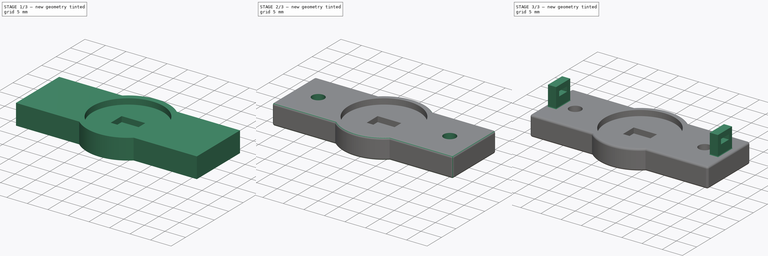
[diagram: build sequence overview — one tinted view per stage of 3, left to right]
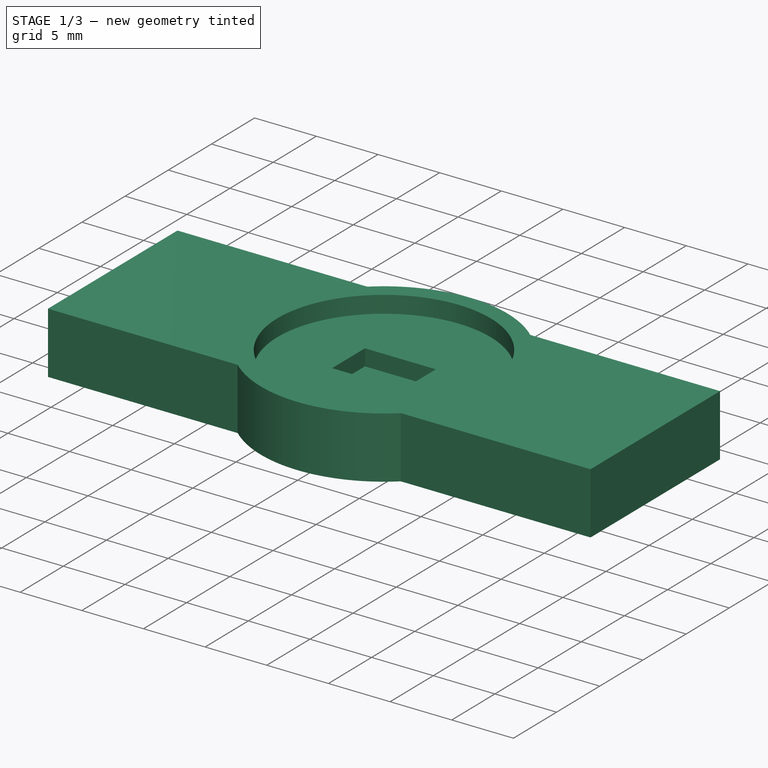
[diagram: stage 1 of 3 — iso view after this stage's code; geometry added in this stage tinted green]
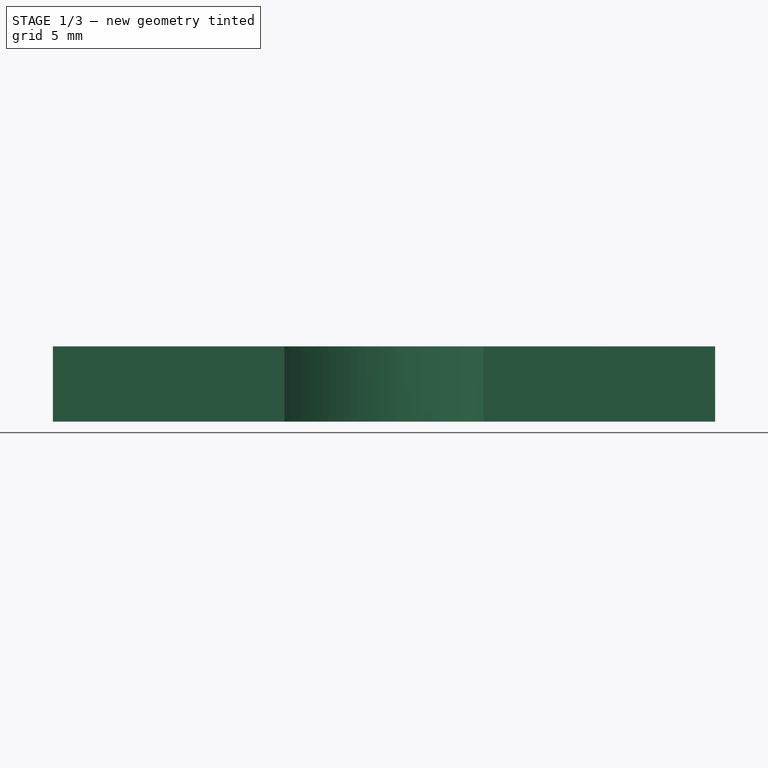
[diagram: stage 1 of 3 — front view after this stage's code; geometry added in this stage tinted green]
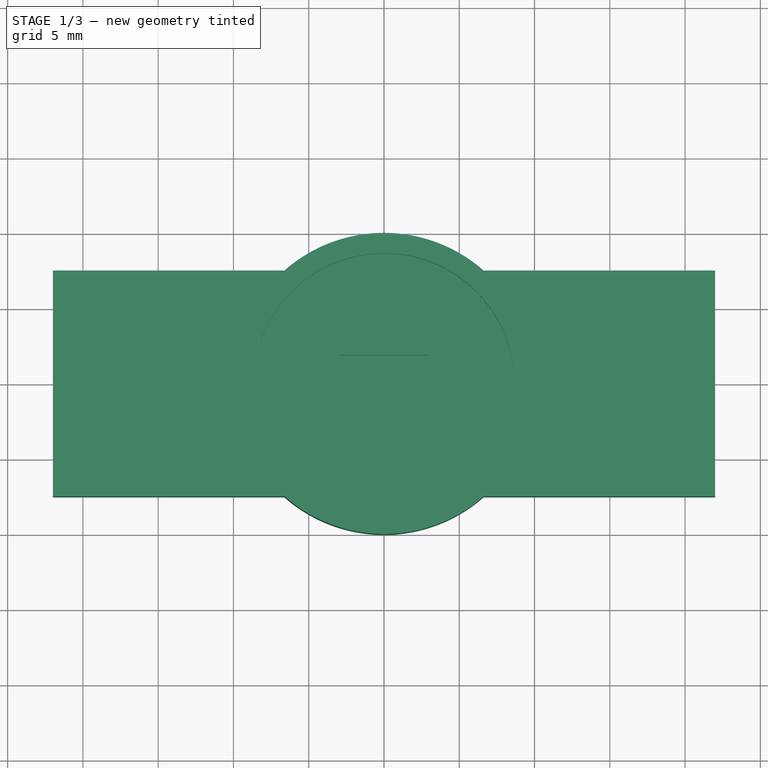
[diagram: stage 1 of 3 — top view after this stage's code; geometry added in this stage tinted green]
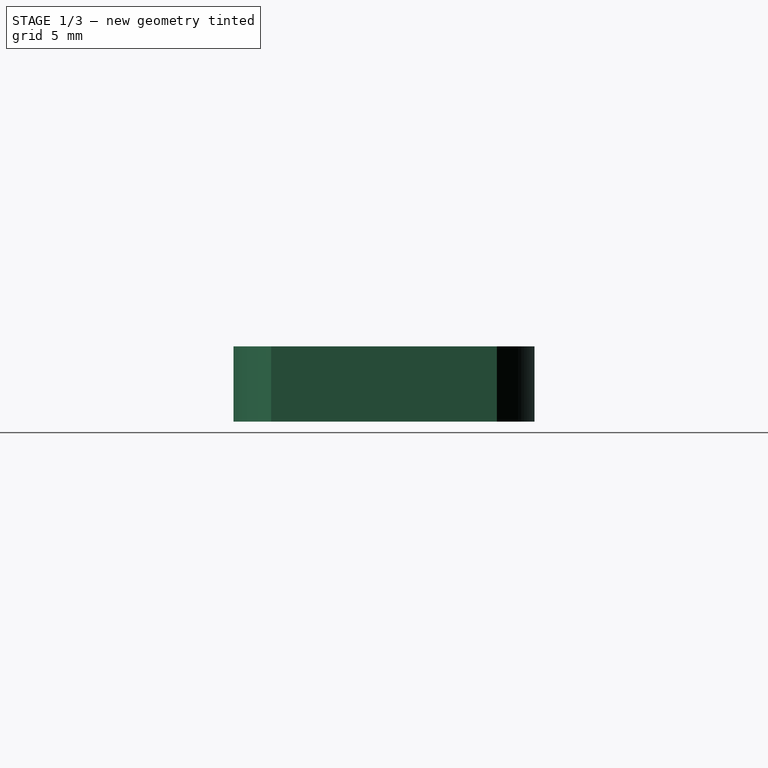
[diagram: stage 1 of 3 — right view after this stage's code; geometry added in this stage tinted green]
FCSTD DOCUMENT  (FreeCAD 0.16R6706 (Git))
Label: cam_mount
License: All rights reserved
LicenseURL: http://en.wikipedia.org/wiki/All_rights_reserved
objects: Sketcher::SketchObject×6, PartDesign::Pocket×4, PartDesign::Pad×2, PartDesign::Fillet×2
note: 20 computed .brp shape members not serialized (recipe doc carries the construction recipe); baked Part::Feature solids carry a one-line shape summary decoded from their .brp

FEATURE [Sketcher::SketchObject] Sketch
  sketch-geometry (8):
    g0: ArcOfCircle CenterX=0 CenterY=0 CenterZ=0 NormalX=0 NormalY=0 NormalZ=1 Radius=10 StartAngle=0.848062 EndAngle=2.29353
    g1: LineSegment StartX=-6.61438 StartY=7.5 StartZ=0 EndX=-22 EndY=7.5 EndZ=0
    g2: LineSegment StartX=-22 StartY=7.5 StartZ=0 EndX=-22 EndY=-7.5 EndZ=0
    g3: LineSegment StartX=-22 StartY=-7.5 StartZ=0 EndX=-6.61438 EndY=-7.5 EndZ=0
    g4: LineSegment StartX=6.61438 StartY=7.5 StartZ=0 EndX=22 EndY=7.5 EndZ=0
    g5: LineSegment StartX=22 StartY=7.5 StartZ=0 EndX=22 EndY=-7.5 EndZ=0
    g6: LineSegment StartX=22 StartY=-7.5 StartZ=0 EndX=6.61438 EndY=-7.5 EndZ=0
    g7: ArcOfCircle CenterX=0 CenterY=0 CenterZ=0 NormalX=0 NormalY=0 NormalZ=1 Radius=10 StartAngle=3.98965 EndAngle=5.43512
  constraints (24):
    c: Coincident(g0,g-1)
    c: Radius(g0) = 10
    c: Horizontal(g1)
    c: Coincident(g1,g2)
    c: Vertical(g2)
    c: Coincident(g2,g3)
    c: Horizontal(g3)
    c: Horizontal(g4)
    c: Coincident(g4,g5)
    c: Vertical(g5)
    c: Coincident(g5,g6)
    c: Horizontal(g6)
    c: Symmetric(g1,g2,g-1)
    c: Symmetric(g4,g5,g-1)
    c: Equal(g2,g5)
    c: Equal(g1,g4)
    c: DistanceY(g2,g2) = 15
    c: DistanceX(g1,g4) = 44
    c: Coincident(g0,g4)
    c: Coincident(g7,g6)
    c: Equal(g0,g7)
    c: Coincident(g0,g1)
    c: Coincident(g7,g3)
    c: Coincident(g0,g7)
FEATURE [PartDesign::Pad] Pad
  Length = 5
  Length2 = 100
  Sketch = -> Sketch
  Type = 0
FEATURE [Sketcher::SketchObject] Sketch001
  Placement = pos=(0,0,5) rot=(0,0,1;0rad)
  Support = -> Pad [Face10]
  expr: Constraints[1] = 17.3 / 2
  sketch-geometry (1):
    g0: Circle CenterX=0 CenterY=0 CenterZ=0 NormalX=0 NormalY=0 NormalZ=1 Radius=8.65
  constraints (2):
    c: Coincident(g0,g-1)
    c: Radius(g0) = 8.65
FEATURE [PartDesign::Pocket] Pocket
  Length = 1.38
  Sketch = -> Sketch001
  Type = 0
FEATURE [Sketcher::SketchObject] Sketch002
  Placement = pos=(0,0,3.62) rot=(0,0,1;0rad)
  Support = -> Pocket [Face12]
  sketch-geometry (4):
    g0: LineSegment StartX=-2.875 StartY=1.9 StartZ=0 EndX=2.875 EndY=1.9 EndZ=0
    g1: LineSegment StartX=2.875 StartY=1.9 StartZ=0 EndX=2.875 EndY=-1.9 EndZ=0
    g2: LineSegment StartX=2.875 StartY=-1.9 StartZ=0 EndX=-2.875 EndY=-1.9 EndZ=0
    g3: LineSegment StartX=-2.875 StartY=-1.9 StartZ=0 EndX=-2.875 EndY=1.9 EndZ=0
  constraints (12):
    c: Coincident(g0,g1)
    c: Coincident(g1,g2)
    c: Coincident(g2,g3)
    c: Coincident(g3,g0)
    c: Horizontal(g0)
    c: Horizontal(g2)
    c: Vertical(g1)
    c: Vertical(g3)
    c: Symmetric(g0,g0,g-2)
    c: Symmetric(g2,g0,g-1)
    c: DistanceY(g1,g1) = 3.8
    c: DistanceX(g0,g0) = 5.75
FEATURE [PartDesign::Pocket] Pocket001
  Length = 1.32
  Sketch = -> Sketch002
  Type = 0
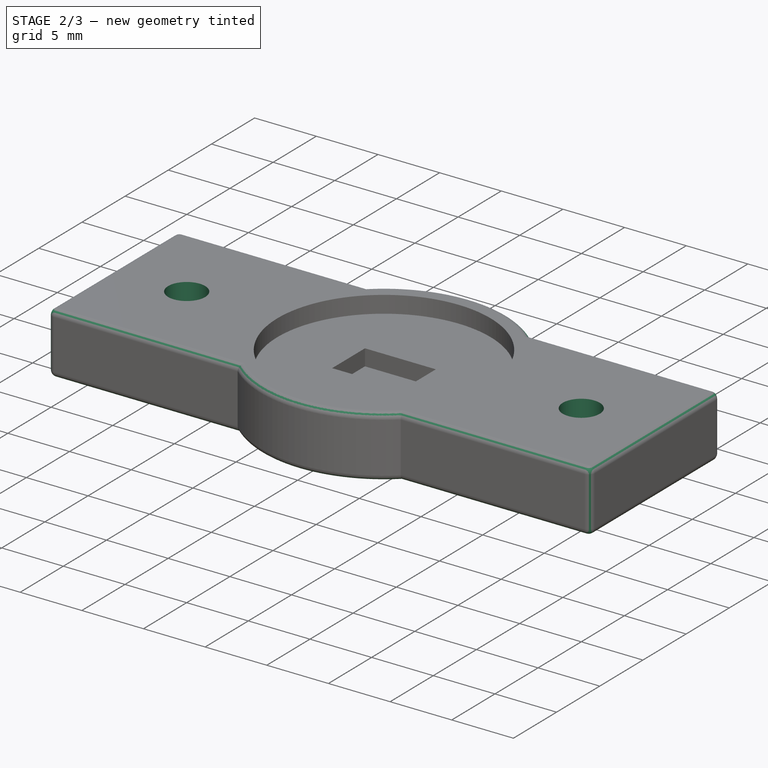
[diagram: stage 2 of 3 — iso view after this stage's code; geometry added in this stage tinted green]
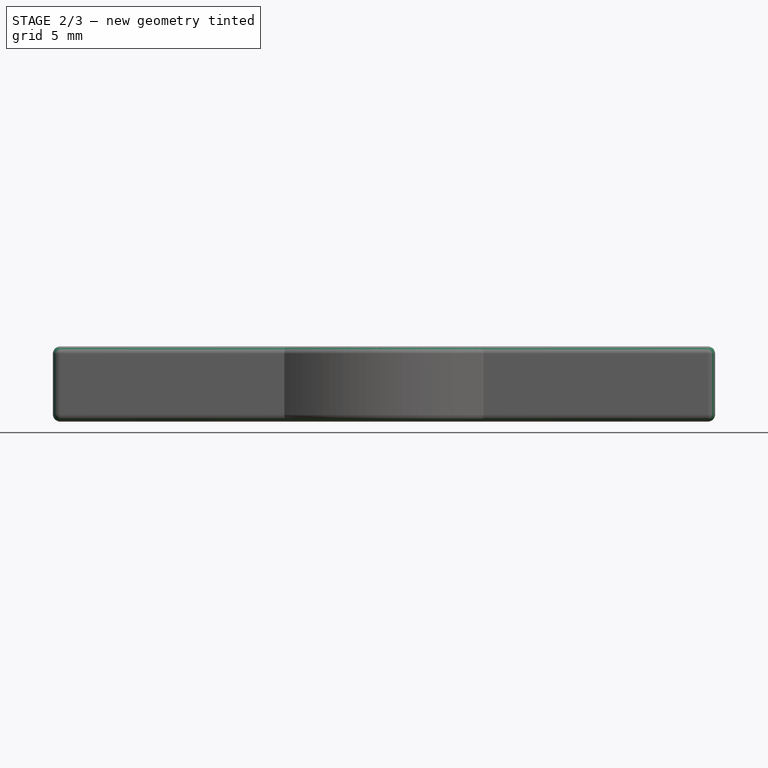
[diagram: stage 2 of 3 — front view after this stage's code; geometry added in this stage tinted green]
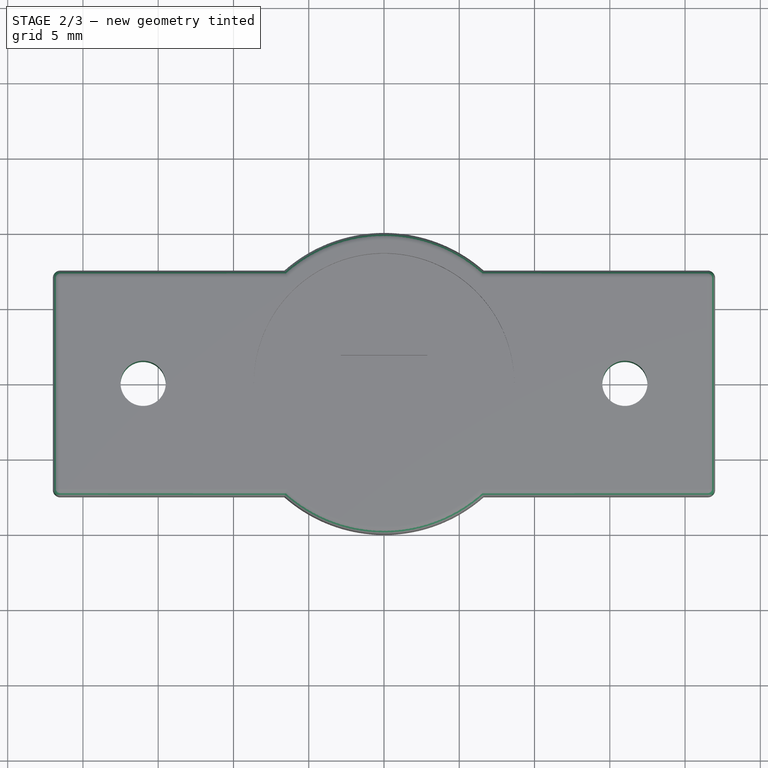
[diagram: stage 2 of 3 — top view after this stage's code; geometry added in this stage tinted green]
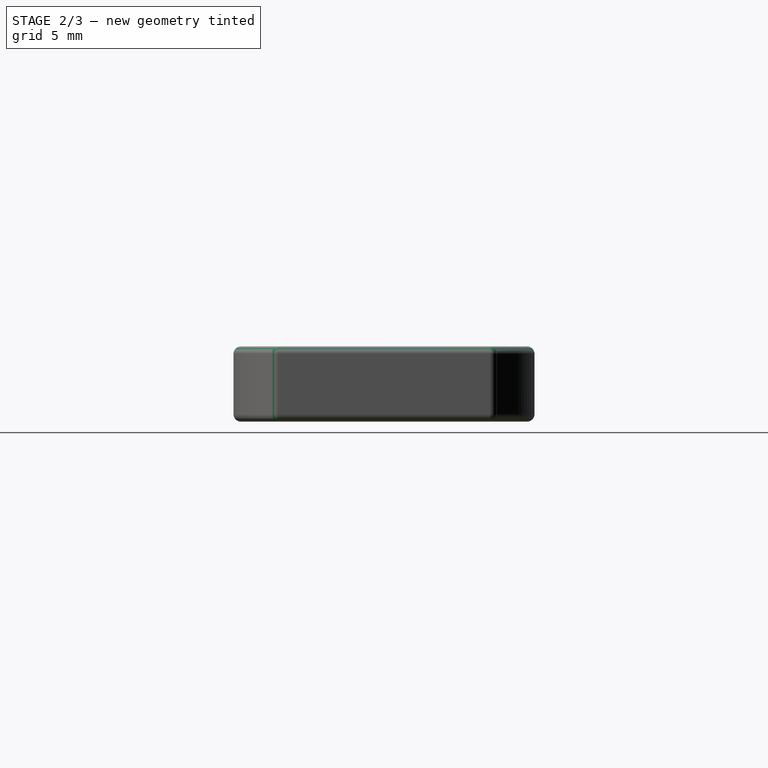
[diagram: stage 2 of 3 — right view after this stage's code; geometry added in this stage tinted green]
FEATURE [Sketcher::SketchObject] Sketch003
  Placement = pos=(0,0,5) rot=(0,0,1;0rad)
  Support = -> Pocket001 [Face5]
  sketch-geometry (2):
    g0: Circle CenterX=-16 CenterY=0 CenterZ=0 NormalX=0 NormalY=0 NormalZ=1 Radius=1.5
    g1: Circle CenterX=16 CenterY=0 CenterZ=0 NormalX=0 NormalY=0 NormalZ=1 Radius=1.5
  constraints (6):
    c: PointOnObject(g0,g-1)
    c: PointOnObject(g1,g-1)
    c: DistanceX(g0,g1) = 32
    c: Radius(g0) = 1.5
    c: Equal(g0,g1)
    c: Symmetric(g0,g1,g-2)
FEATURE [PartDesign::Pocket] Pocket002
  Length = 5
  Sketch = -> Sketch003
  Type = 1
FEATURE [PartDesign::Fillet] Fillet
  Base = -> Pocket002 [Edge9,Edge3,Edge6,Edge11,Edge13,Edge15,Edge14,Edge8,Edge12,Edge27,Edge19,Edge10,Edge4,Edge7,Edge5,Edge18,Edge26,Edge20,Edge22,Edge21]
  Radius = 0.5
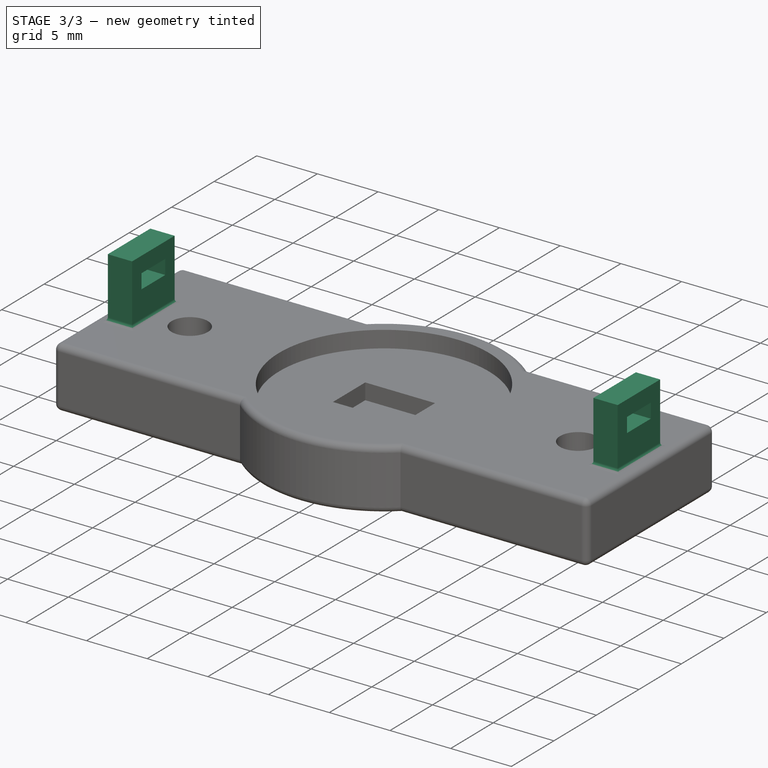
[diagram: stage 3 of 3 — iso view after this stage's code; geometry added in this stage tinted green]
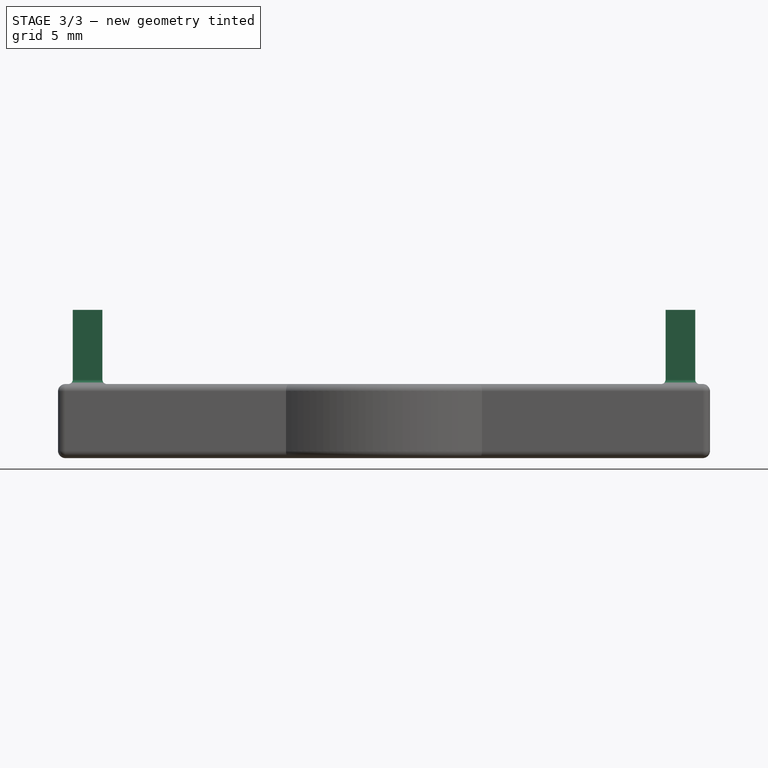
[diagram: stage 3 of 3 — front view after this stage's code; geometry added in this stage tinted green]
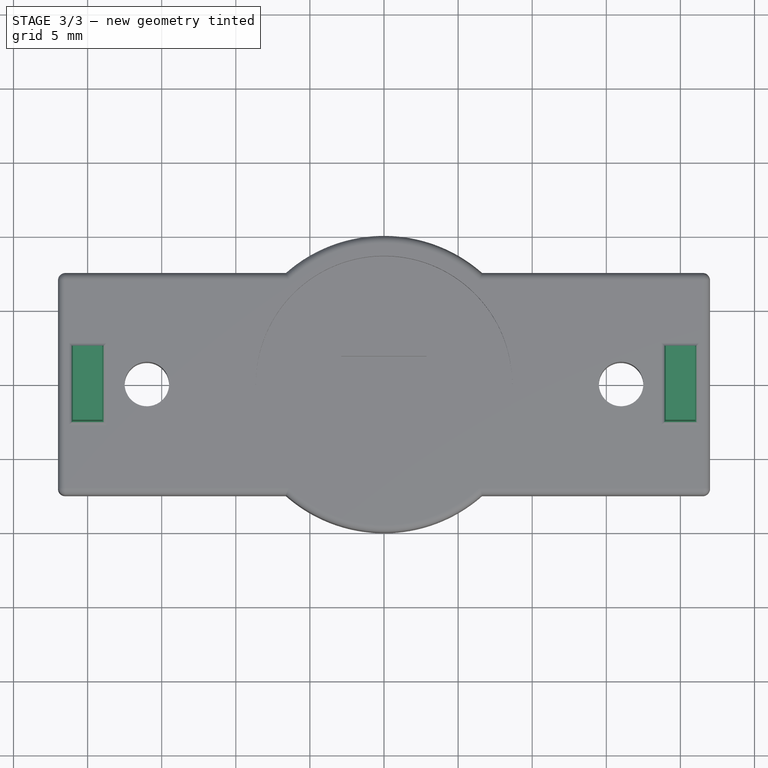
[diagram: stage 3 of 3 — top view after this stage's code; geometry added in this stage tinted green]
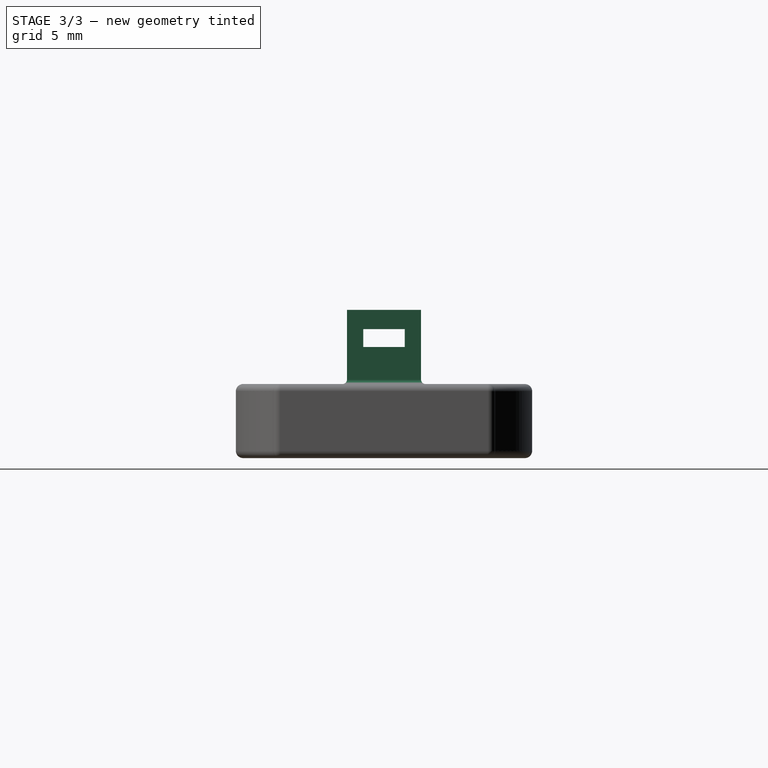
[diagram: stage 3 of 3 — right view after this stage's code; geometry added in this stage tinted green]
FEATURE [Sketcher::SketchObject] Sketch004
  Placement = pos=(0,0,5) rot=(0,0,1;0rad)
  Support = -> Fillet [Face11]
  sketch-geometry (8):
    g0: LineSegment StartX=-21 StartY=2.5 StartZ=0 EndX=-19 EndY=2.5 EndZ=0
    g1: LineSegment StartX=-19 StartY=2.5 StartZ=0 EndX=-19 EndY=-2.5 EndZ=0
    g2: LineSegment StartX=-19 StartY=-2.5 StartZ=0 EndX=-21 EndY=-2.5 EndZ=0
    g3: LineSegment StartX=-21 StartY=-2.5 StartZ=0 EndX=-21 EndY=2.5 EndZ=0
    g4: LineSegment StartX=19 StartY=2.5 StartZ=0 EndX=21 EndY=2.5 EndZ=0
    g5: LineSegment StartX=21 StartY=2.5 StartZ=0 EndX=21 EndY=-2.5 EndZ=0
    g6: LineSegment StartX=21 StartY=-2.5 StartZ=0 EndX=19 EndY=-2.5 EndZ=0
    g7: LineSegment StartX=19 StartY=-2.5 StartZ=0 EndX=19 EndY=2.5 EndZ=0
  constraints (24):
    c: Coincident(g0,g1)
    c: Coincident(g1,g2)
    c: Coincident(g2,g3)
    c: Coincident(g3,g0)
    c: Horizontal(g0)
    c: Horizontal(g2)
    c: Vertical(g1)
    c: Vertical(g3)
    c: Coincident(g4,g5)
    c: Coincident(g5,g6)
    c: Coincident(g6,g7)
    c: Coincident(g7,g4)
    c: Horizontal(g4)
    c: Horizontal(g6)
    c: Vertical(g5)
    c: Vertical(g7)
    c: Symmetric(g0,g2,g-1)
    c: Symmetric(g4,g5,g-1)
    c: Symmetric(g0,g4,g-2)
    c: Equal(g0,g4)
    c: Equal(g1,g7)
    c: DistanceX(g0,g0) = 2
    c: DistanceY(g1,g1) = 5
    c: Distance(g-1,g1) = 19
FEATURE [PartDesign::Pad] Pad001
  Length = 5
  Length2 = 100
  Sketch = -> Sketch004
  Type = 0
FEATURE [PartDesign::Fillet] Fillet001
  Base = -> Pad001 [Edge44,Edge43,Edge47,Edge48,Edge41,Edge42,Edge49,Edge46]
  Radius = 0.3
FEATURE [Sketcher::SketchObject] Sketch005
  Placement = pos=(-19,0,0) rot=(0.57735,0.57735,0.57735;2.0944rad)
  Support = -> Fillet001 [Face24]
  sketch-geometry (4):
    g0: LineSegment StartX=-1.4 StartY=8.7 StartZ=0 EndX=1.4 EndY=8.7 EndZ=0
    g1: LineSegment StartX=1.4 StartY=8.7 StartZ=0 EndX=1.4 EndY=7.5 EndZ=0
    g2: LineSegment StartX=1.4 StartY=7.5 StartZ=0 EndX=-1.4 EndY=7.5 EndZ=0
    g3: LineSegment StartX=-1.4 StartY=7.5 StartZ=0 EndX=-1.4 EndY=8.7 EndZ=0
  constraints (12):
    c: Coincident(g0,g1)
    c: Coincident(g1,g2)
    c: Coincident(g2,g3)
    c: Coincident(g3,g0)
    c: Horizontal(g0)
    c: Horizontal(g2)
    c: Vertical(g1)
    c: Vertical(g3)
    c: Symmetric(g0,g0,g-2)
    c: DistanceY(g1,g1) = 1.2
    c: DistanceX(g2,g2) = 2.8
    c: Distance(g-1,g2) = 7.5
FEATURE [PartDesign::Pocket] Pocket003
  Length = 5
  Midplane = true
  Sketch = -> Sketch005
  Type = 1
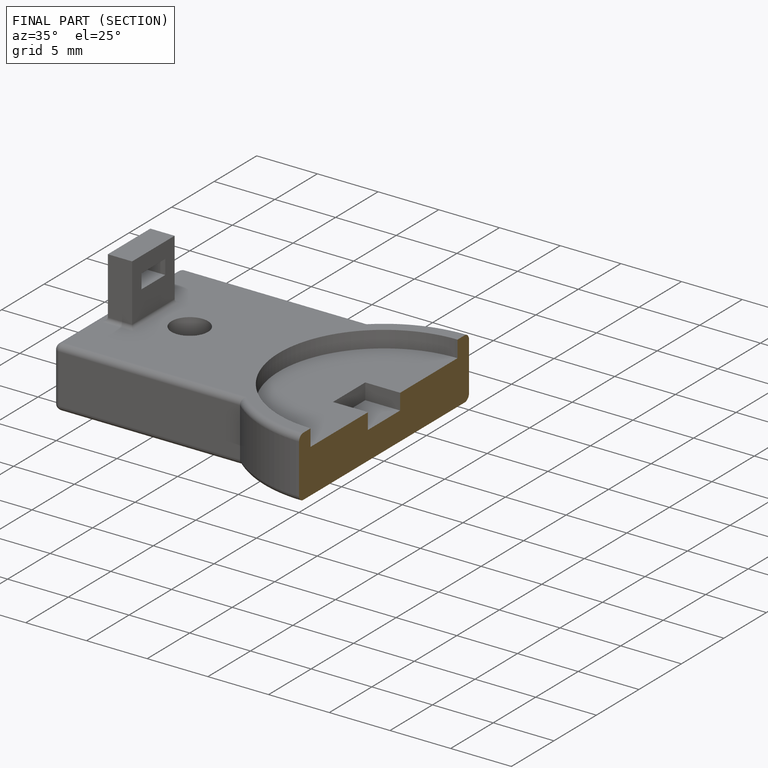
[diagram: finished part — half-section view (interior)]
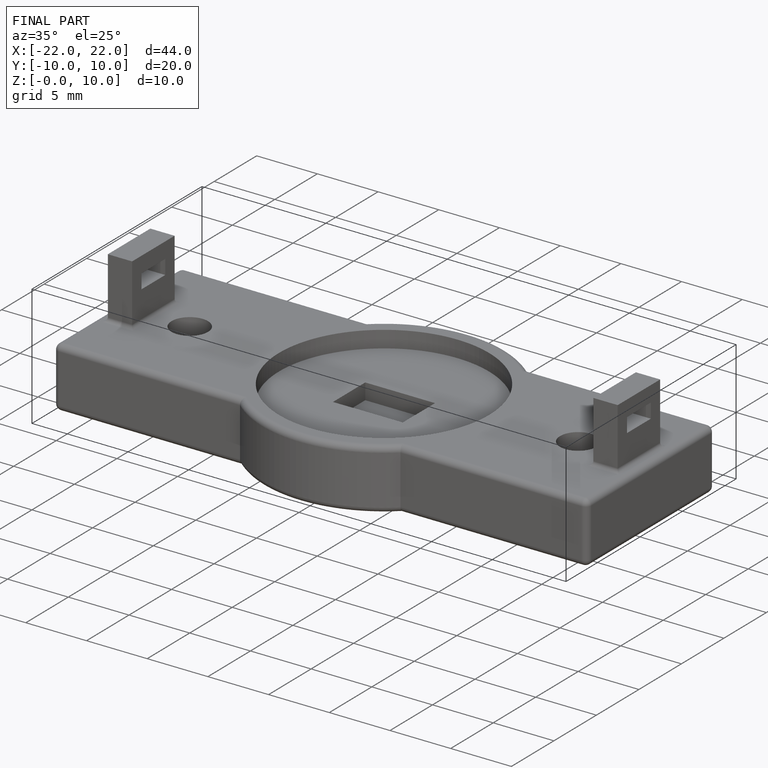
[diagram: finished part — iso view with bounding-box wireframe]
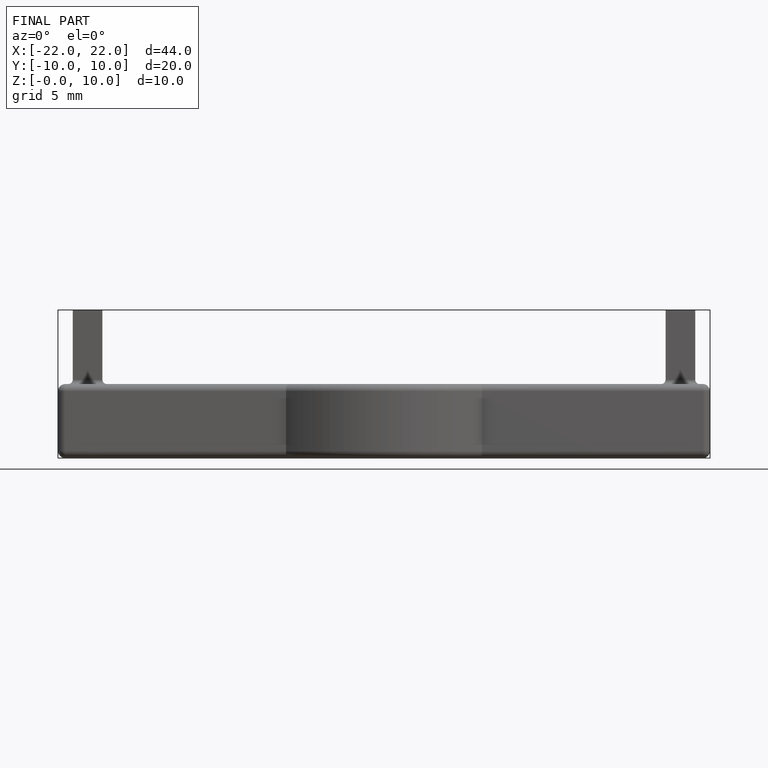
[diagram: finished part — front view with bounding-box wireframe]
